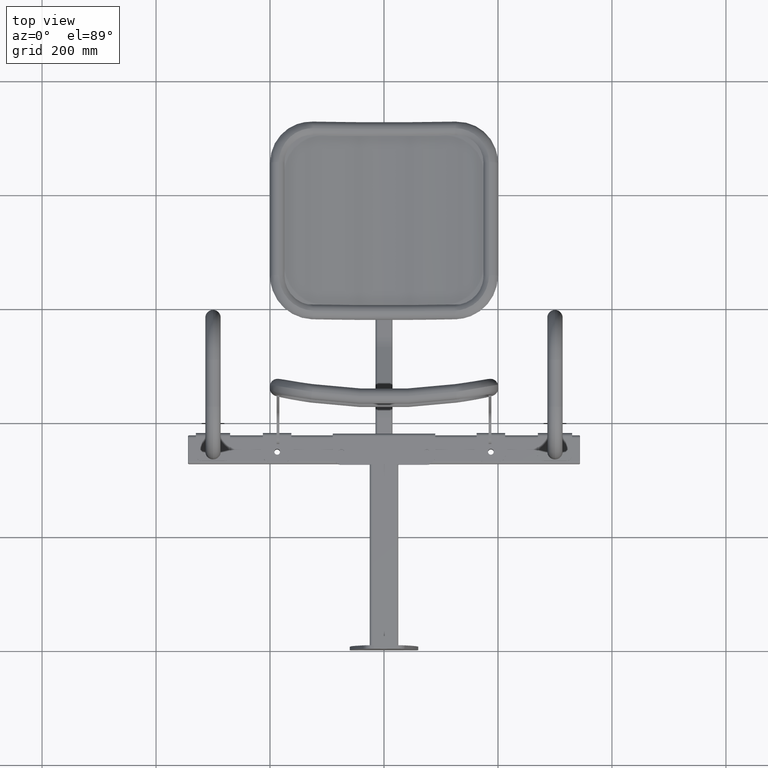
[diagram: clean part render]
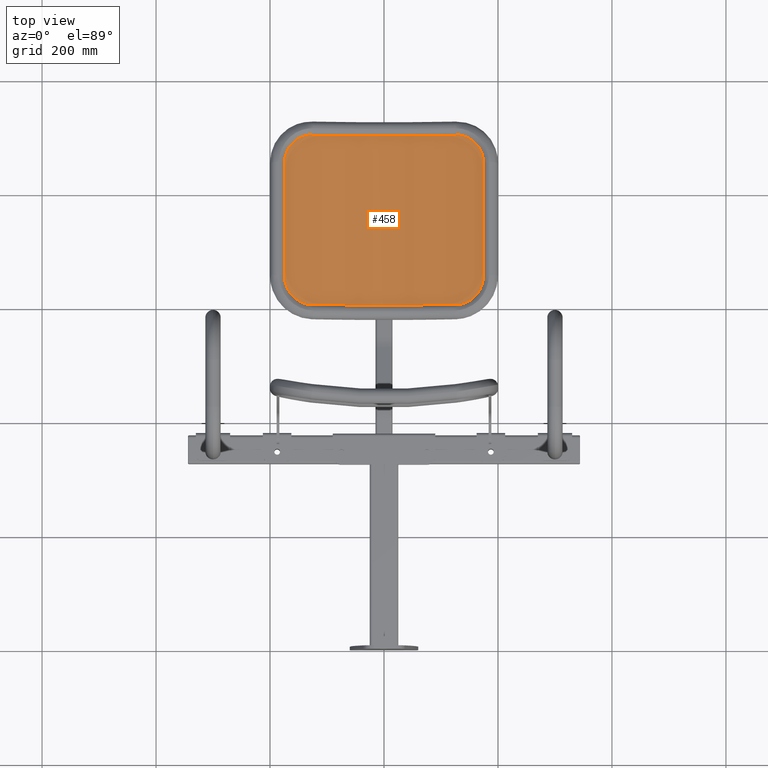
[diagram: same view with one face highlighted and labeled with its STEP entity id]
A machine part, top view. The second image highlights one B-rep face of the part: STEP entity #458.
In plain terms, the highlighted cylindrical surface (partial cylindrical patch) has radius 922 mm, axis along (-0, 0.9925, -0.1219).
Its self-contained STEP definition (entity closure, byte-faithful):
#458 = ADVANCED_FACE ( 'NONE', ( #1578 ), #1581, .F. ) ;
#886 = LINE ( 'NONE', #13178, #890 ) ;
#890 = VECTOR ( 'NONE', #13211, 1000.000000000000000 ) ;
#901 = LINE ( 'NONE', #13348, #903 ) ;
#903 = VECTOR ( 'NONE', #13381, 1000.000000000000000 ) ;
#915 = CIRCLE ( 'NONE', #15581, 921.9999999999998900 ) ;
#916 = CIRCLE ( 'NONE', #15580, 921.9999999999998900 ) ;
#1578 = FACE_OUTER_BOUND ( 'NONE', #16616, .T. ) ;
#1581 = CYLINDRICAL_SURFACE ( 'NONE', #15327, 921.9999999999998900 ) ;
#2684 = B_SPLINE_CURVE_WITH_KNOTS ( 'NONE', 3,
 ( #13461, #13469, #13474, #13475, #13476, #13477, #13478, #13479, #13480, #13481, #13482, #13483, #13484, #13485, #13486, #13487, #13488, #13489, #13490, #13491, #13492, #13493, #13494, #13495, #13496, #13497, #13498, #13499, #13500, #13501, #13502, #13503 ),
 .UNSPECIFIED., .F., .F.,
 ( 4, 2, 2, 2, 2, 2, 2, 2, 2, 2, 2, 2, 2, 2, 2, 4 ),
 ( 0.0000000000000000000, 0.008803417324602391000, 0.01320512598690356400, 0.01540598031805417300, 0.01760683464920477900, 0.02641025197380710000, 0.03081196063610820400, 0.03301281496725878800, 0.03521366929840937700, 0.04401708662301172200, 0.04841879528531291300, 0.05061964961646353600, 0.05282050394761415900, 0.06162392127221670600, 0.06602562993451799300, 0.07042733859681928100 ),
 .UNSPECIFIED. ) ;
#2694 = B_SPLINE_CURVE_WITH_KNOTS ( 'NONE', 3,
 ( #13303, #13304, #13309, #13310, #13311, #13312, #13313, #13314, #13315, #13316, #13317, #13318, #13319, #13320, #13321, #13322, #13323, #13324, #13325, #13326, #13327, #13328, #13329, #13330, #13331, #13332, #13333, #13334, #13335, #13336, #13337, #13338 ),
 .UNSPECIFIED., .F., .F.,
 ( 4, 2, 2, 2, 2, 2, 2, 2, 2, 2, 2, 2, 2, 2, 2, 4 ),
 ( 8.606610732756654000E-016, 0.008802556550099940900, 0.01320383482514949500, 0.01540447396267425300, 0.01760511310019901100, 0.02640766965029801200, 0.03080894792534751000, 0.03300958706287229100, 0.03521022620039706400, 0.04401278275049643600, 0.04841406102554610100, 0.05281533930059576600, 0.06161789585069513100, 0.06601917412574483100, 0.06821981326326970200, 0.07042045240079457300 ),
 .UNSPECIFIED. ) ;
#2701 = B_SPLINE_CURVE_WITH_KNOTS ( 'NONE', 3,
 ( #13091, #13092, #13097, #13098, #13099, #13100, #13101, #13102, #13103, #13104, #13105, #13106, #13107, #13108, #13109, #13110, #13111, #13112, #13113, #13114, #13115, #13116, #13117, #13118, #13119, #13120, #13121, #13122, #13123, #13124, #13125, #13126 ),
 .UNSPECIFIED., .F., .F.,
 ( 4, 2, 2, 2, 2, 2, 2, 2, 2, 2, 2, 2, 2, 2, 2, 4 ),
 ( 3.927108981965563000E-016, 0.008803417324603624400, 0.01320512598690524000, 0.01540598031805603600, 0.01760683464920683200, 0.02641025197380998000, 0.03081196063611156600, 0.03301281496726236200, 0.03521366929841315800, 0.04401708662301644800, 0.04841879528531810300, 0.05061964961646892000, 0.05282050394761975100, 0.06162392127222313100, 0.06602562993452476500, 0.07042733859682641400 ),
 .UNSPECIFIED. ) ;
#2706 = B_SPLINE_CURVE_WITH_KNOTS ( 'NONE', 3,
 ( #13217, #13212, #13220, #13221, #13222, #13223, #13224, #13225, #13226, #13227, #13228, #13229, #13230, #13231, #13232, #13233, #13234, #13235, #13236, #13237, #13238, #13239, #13240, #13241, #13242, #13243, #13244, #13245, #13246, #13247, #13248, #13249 ),
 .UNSPECIFIED., .F., .F.,
 ( 4, 2, 2, 2, 2, 2, 2, 2, 2, 2, 2, 2, 2, 2, 2, 4 ),
 ( 8.428640294997401100E-015, 0.008802556550107020300, 0.01320383482515630000, 0.01540447396268092500, 0.01760511310020554700, 0.02640766965030383000, 0.03080894792535294700, 0.03300958706287754300, 0.03521022620040213000, 0.04401278275050032200, 0.04841406102554943200, 0.05281533930059854900, 0.06161789585069681100, 0.06601917412574592700, 0.06821981326327052100, 0.07042045240079510000 ),
 .UNSPECIFIED. ) ;
#7232 = CARTESIAN_POINT ( 'NONE',  ( -133.5027708095150300, -4.043348160158284800, -150.0000000000000000 ) ) ;
#7245 = CARTESIAN_POINT ( 'NONE',  ( -133.5027708095146900, -4.043348160158411800, 150.0000000000000000 ) ) ;
#10197 = VERTEX_POINT ( 'NONE', #13952 ) ;
#10210 = VERTEX_POINT ( 'NONE', #13965 ) ;
#10269 = VERTEX_POINT ( 'NONE', #14024 ) ;
#10283 = VERTEX_POINT ( 'NONE', #14038 ) ;
#10286 = VERTEX_POINT ( 'NONE', #14041 ) ;
#10290 = VERTEX_POINT ( 'NONE', #14045 ) ;
#11917 = VERTEX_POINT ( 'NONE', #7232 ) ;
#11930 = VERTEX_POINT ( 'NONE', #7245 ) ;
#13091 = CARTESIAN_POINT ( 'NONE',  ( 174.6780423094277000, 2.938127989229069900, -100.0000000000000000 ) ) ;
#13092 = CARTESIAN_POINT ( 'NONE',  ( 174.6780423094293400, 2.938127989232677700, -102.9767111701996900 ) ) ;
#13097 = CARTESIAN_POINT ( 'NONE',  ( 174.4252569109687800, 2.889249156995799400, -105.9095809351519500 ) ) ;
#13098 = CARTESIAN_POINT ( 'NONE',  ( 173.6823065029261100, 2.746533479585206100, -110.2458254922048400 ) ) ;
#13099 = CARTESIAN_POINT ( 'NONE',  ( 173.3736626402040300, 2.687343729852856200, -111.6806676315718500 ) ) ;
#13100 = CARTESIAN_POINT ( 'NONE',  ( 172.8179272435431000, 2.581180420399842700, -113.8168594006251100 ) ) ;
#13101 = CARTESIAN_POINT ( 'NONE',  ( 172.6171985542212000, 2.542893235740705000, -114.5262409831928100 ) ) ;
#13102 = CARTESIAN_POINT ( 'NONE',  ( 172.1842845498676400, 2.460491188602074600, -115.9395566754920600 ) ) ;
#13103 = CARTESIAN_POINT ( 'NONE',  ( 171.9515861540681700, 2.416279086558696900, -116.6449153591403000 ) ) ;
#13104 = CARTESIAN_POINT ( 'NONE',  ( 170.7138823299352700, 2.181677444009757900, -120.1406797326989000 ) ) ;
#13105 = CARTESIAN_POINT ( 'NONE',  ( 169.4991983137305700, 1.953047274785819400, -122.8105190491347500 ) ) ;
#13106 = CARTESIAN_POINT ( 'NONE',  ( 167.3512060475766000, 1.554827582412844600, -126.6316484380882800 ) ) ;
#13107 = CARTESIAN_POINT ( 'NONE',  ( 166.5805605887740900, 1.412827841483002900, -127.8745735445691900 ) ) ;
#13108 = CARTESIAN_POINT ( 'NONE',  ( 165.3411140186353800, 1.186313528368801600, -129.6919993142205100 ) ) ;
#13109 = CARTESIAN_POINT ( 'NONE',  ( 164.9140322696746600, 1.108553735959722200, -130.2899698321673700 ) ) ;
#13110 = CARTESIAN_POINT ( 'NONE',  ( 164.0315003009444900, 0.9485552417487855800, -131.4699633020638000 ) ) ;
#13111 = CARTESIAN_POINT ( 'NONE',  ( 163.5748653853536300, 0.8661043752936908900, -132.0533764078747100 ) ) ;
#13112 = CARTESIAN_POINT ( 'NONE',  ( 161.2387529999138600, 0.4462085634064498800, -134.9061564388811700 ) ) ;
#13113 = CARTESIAN_POINT ( 'NONE',  ( 159.1978465308786500, 0.08529606656501249900, -136.9917475094728700 ) ) ;
#13114 = CARTESIAN_POINT ( 'NONE',  ( 155.8851279581342100, -0.4871208554714147000, -139.8338622777737000 ) ) ;
#13115 = CARTESIAN_POINT ( 'NONE',  ( 154.7387530509506600, -0.6831380520290655200, -140.7332446702119200 ) ) ;
#13116 = CARTESIAN_POINT ( 'NONE',  ( 152.9546340337428200, -0.9844723836857178800, -142.0089234182692900 ) ) ;
#13117 = CARTESIAN_POINT ( 'NONE',  ( 152.3491529466003600, -1.086137138710676600, -142.4218997634149800 ) ) ;
#13118 = CARTESIAN_POINT ( 'NONE',  ( 151.1162202790401100, -1.291844430166143600, -143.2228952222699800 ) ) ;
#13119 = CARTESIAN_POINT ( 'NONE',  ( 150.4883261064795800, -1.395955851073583900, -143.6110605275198400 ) ) ;
#13120 = CARTESIAN_POINT ( 'NONE',  ( 147.3253740385165700, -1.916968884661652400, -145.4697822865375400 ) ) ;
#13121 = CARTESIAN_POINT ( 'NONE',  ( 144.6960490761461800, -2.339245843048198800, -146.7123967559648200 ) ) ;
#13122 = CARTESIAN_POINT ( 'NONE',  ( 140.6068619629395800, -2.976500450835516600, -148.2193977601141100 ) ) ;
#13123 = CARTESIAN_POINT ( 'NONE',  ( 139.2194630377412600, -3.189579564213771900, -148.6619021252992600 ) ) ;
#13124 = CARTESIAN_POINT ( 'NONE',  ( 136.3948739619451400, -3.616554344970484000, -149.4247097407211700 ) ) ;
#13125 = CARTESIAN_POINT ( 'NONE',  ( 134.9540972695986100, -3.830962291024167900, -149.7453999577484500 ) ) ;
#13126 = CARTESIAN_POINT ( 'NONE',  ( 133.5027708095076700, -4.043348160161209600, -150.0000000000000000 ) ) ;
#13178 = CARTESIAN_POINT ( 'NONE',  ( 174.6780423094276400, 2.938127989229100100, 0.0000000000000000000 ) ) ;
#13211 = DIRECTION ( 'NONE',  ( -0.0000000000000000000, -0.0000000000000000000, -1.000000000000000000 ) ) ;
#13212 = CARTESIAN_POINT ( 'NONE',  ( -136.4044524121475800, -3.618718563662579600, -149.4909703096117000 ) ) ;
#13217 = CARTESIAN_POINT ( 'NONE',  ( -133.5027708095150300, -4.043348160158284800, -150.0000000000000000 ) ) ;
#13220 = CARTESIAN_POINT ( 'NONE',  ( -139.2157402112301000, -3.193201298298841800, -148.7300908071784700 ) ) ;
#13221 = CARTESIAN_POINT ( 'NONE',  ( -143.3031395745495900, -2.556359719185635500, -147.2267049283003600 ) ) ;
#13222 = CARTESIAN_POINT ( 'NONE',  ( -144.6438899564408000, -2.344332376845247100, -146.6648703919832100 ) ) ;
#13223 = CARTESIAN_POINT ( 'NONE',  ( -146.6220860598248200, -2.027162559964417200, -145.7298554267849800 ) ) ;
#13224 = CARTESIAN_POINT ( 'NONE',  ( -147.2759889221212900, -1.921585602901901400, -145.4027849053079300 ) ) ;
#13225 = CARTESIAN_POINT ( 'NONE',  ( -148.5726483527038200, -1.710821201565750500, -144.7173727561183200 ) ) ;
#13226 = CARTESIAN_POINT ( 'NONE',  ( -149.2169678934316400, -1.605374842082262400, -144.3580730241737600 ) ) ;
#13227 = CARTESIAN_POINT ( 'NONE',  ( -152.3844638327494200, -1.083632167137132500, -142.4972107034067800 ) ) ;
#13228 = CARTESIAN_POINT ( 'NONE',  ( -154.7532591195762600, -0.6826354278457768000, -140.8022876210274600 ) ) ;
#13229 = CARTESIAN_POINT ( 'NONE',  ( -158.0685886014815900, -0.1098646472610107000, -137.9618855153419800 ) ) ;
#13230 = CARTESIAN_POINT ( 'NONE',  ( -159.1338203578423800, 0.07624399679278519300, -136.9651220025052700 ) ) ;
#13231 = CARTESIAN_POINT ( 'NONE',  ( -160.6710205796737200, 0.3473898814974699700, -135.3938462974307700 ) ) ;
#13232 = CARTESIAN_POINT ( 'NONE',  ( -161.1732984616822900, 0.4364335548314541800, -134.8573813391294900 ) ) ;
#13233 = CARTESIAN_POINT ( 'NONE',  ( -162.1572907833169400, 0.6116837531127629100, -133.7586132477186700 ) ) ;
#13234 = CARTESIAN_POINT ( 'NONE',  ( -162.6382829059245400, 0.6977635892723492700, -133.1969790404442600 ) ) ;
#13235 = CARTESIAN_POINT ( 'NONE',  ( -164.9687295435143100, 1.116632361648125300, -130.3517139942909200 ) ) ;
#13236 = CARTESIAN_POINT ( 'NONE',  ( -166.6149145823608800, 1.418353854519800900, -127.9372995264752000 ) ) ;
#13237 = CARTESIAN_POINT ( 'NONE',  ( -168.7673811361679800, 1.817360527010247500, -124.1144138570340200 ) ) ;
#13238 = CARTESIAN_POINT ( 'NONE',  ( -169.4317598822122500, 1.941394612183192000, -122.8063802993798100 ) ) ;
#13239 = CARTESIAN_POINT ( 'NONE',  ( -170.6523357711537900, 2.170431089114700700, -120.1215041083181900 ) ) ;
#13240 = CARTESIAN_POINT ( 'NONE',  ( -171.2095691463161700, 2.275633990467209600, -118.7401357903834500 ) ) ;
#13241 = CARTESIAN_POINT ( 'NONE',  ( -172.6868317126451300, 2.555639529861443800, -114.5693454951728300 ) ) ;
#13242 = CARTESIAN_POINT ( 'NONE',  ( -173.4255939864389100, 2.697224416701996300, -111.7314858990513500 ) ) ;
#13243 = CARTESIAN_POINT ( 'NONE',  ( -174.1725968260297700, 2.840713097092864000, -107.3904394198565100 ) ) ;
#13244 = CARTESIAN_POINT ( 'NONE',  ( -174.3610627241996300, 2.877015158256031500, -105.9293014465063200 ) ) ;
#13245 = CARTESIAN_POINT ( 'NONE',  ( -174.5507831765804400, 2.913580320993418100, -103.7158953305182900 ) ) ;
#13246 = CARTESIAN_POINT ( 'NONE',  ( -174.5985353192888900, 2.922790154322341600, -102.9733979338756000 ) ) ;
#13247 = CARTESIAN_POINT ( 'NONE',  ( -174.6621354910554700, 2.935058333662315300, -101.4874028404083200 ) ) ;
#13248 = CARTESIAN_POINT ( 'NONE',  ( -174.6780423094276700, 2.938127989229069900, -100.7439361827915900 ) ) ;
#13249 = CARTESIAN_POINT ( 'NONE',  ( -174.6780423094277000, 2.938127989229081900, -100.0000000000000000 ) ) ;
#13303 = CARTESIAN_POINT ( 'NONE',  ( 133.5027708095076900, -4.043348160161192700, 150.0000000000000000 ) ) ;
#13304 = CARTESIAN_POINT ( 'NONE',  ( 136.4044524121483200, -3.618718563662441000, 149.4909703096116400 ) ) ;
#13309 = CARTESIAN_POINT ( 'NONE',  ( 139.2157402112238200, -3.193201298299714900, 148.7300908071803700 ) ) ;
#13310 = CARTESIAN_POINT ( 'NONE',  ( 143.3031395745439300, -2.556359719186442900, 147.2267049283025500 ) ) ;
#13311 = CARTESIAN_POINT ( 'NONE',  ( 144.6438899564353200, -2.344332376846201000, 146.6648703919855400 ) ) ;
#13312 = CARTESIAN_POINT ( 'NONE',  ( 146.6220860598195900, -2.027162559965339600, 145.7298554267874800 ) ) ;
#13313 = CARTESIAN_POINT ( 'NONE',  ( 147.2759889221161700, -1.921585602902800000, 145.4027849053104800 ) ) ;
#13314 = CARTESIAN_POINT ( 'NONE',  ( 148.5726483526988500, -1.710821201566628200, 144.7173727561209900 ) ) ;
#13315 = CARTESIAN_POINT ( 'NONE',  ( 149.2169678934267000, -1.605374842083110200, 144.3580730241763500 ) ) ;
#13316 = CARTESIAN_POINT ( 'NONE',  ( 152.3844638327451300, -1.083632167137888800, 142.4972107034095600 ) ) ;
#13317 = CARTESIAN_POINT ( 'NONE',  ( 154.7532591195726200, -0.6826354278463492300, 140.8022876210304200 ) ) ;
#13318 = CARTESIAN_POINT ( 'NONE',  ( 158.0685886014783800, -0.1098646472614986900, 137.9618855153448200 ) ) ;
#13319 = CARTESIAN_POINT ( 'NONE',  ( 159.1338203578393400, 0.07624399679224898300, 136.9651220025082000 ) ) ;
#13320 = CARTESIAN_POINT ( 'NONE',  ( 160.6710205796708200, 0.3473898814969710900, 135.3938462974336400 ) ) ;
#13321 = CARTESIAN_POINT ( 'NONE',  ( 161.1732984616796200, 0.4364335548311996700, 134.8573813391325900 ) ) ;
#13322 = CARTESIAN_POINT ( 'NONE',  ( 162.1572907833144100, 0.6116837531125318700, 133.7586132477217400 ) ) ;
#13323 = CARTESIAN_POINT ( 'NONE',  ( 162.6382829059219500, 0.6977635892719202800, 133.1969790404470200 ) ) ;
#13324 = CARTESIAN_POINT ( 'NONE',  ( 164.9687295435123200, 1.116632361647790000, 130.3517139942935600 ) ) ;
#13325 = CARTESIAN_POINT ( 'NONE',  ( 166.6149145823592300, 1.418353854519284200, 127.9372995264775900 ) ) ;
#13326 = CARTESIAN_POINT ( 'NONE',  ( 168.7673811361666200, 1.817360527009802600, 124.1144138570360700 ) ) ;
#13327 = CARTESIAN_POINT ( 'NONE',  ( 169.4317598822111400, 1.941394612182911500, 122.8063802993819100 ) ) ;
#13328 = CARTESIAN_POINT ( 'NONE',  ( 170.6523357711529300, 2.170431089114456900, 120.1215041083201400 ) ) ;
#13329 = CARTESIAN_POINT ( 'NONE',  ( 171.2095691463154600, 2.275633990467107000, 118.7401357903853100 ) ) ;
#13330 = CARTESIAN_POINT ( 'NONE',  ( 172.6868317126446200, 2.555639529861405600, 114.5693454951741200 ) ) ;
#13331 = CARTESIAN_POINT ( 'NONE',  ( 173.4255939864386600, 2.697224416701903900, 111.7314858990523000 ) ) ;
#13332 = CARTESIAN_POINT ( 'NONE',  ( 174.1725968260296900, 2.840713097092797800, 107.3904394198571000 ) ) ;
#13333 = CARTESIAN_POINT ( 'NONE',  ( 174.3610627241994000, 2.877015158256080800, 105.9293014465067600 ) ) ;
#13334 = CARTESIAN_POINT ( 'NONE',  ( 174.5507831765803000, 2.913580320993474500, 103.7158953305186200 ) ) ;
#13335 = CARTESIAN_POINT ( 'NONE',  ( 174.5985353192888000, 2.922790154322271000, 102.9733979338758200 ) ) ;
#13336 = CARTESIAN_POINT ( 'NONE',  ( 174.6621354910553800, 2.935058333662245600, 101.4874028404083900 ) ) ;
#13337 = CARTESIAN_POINT ( 'NONE',  ( 174.6780423094276700, 2.938127989229131700, 100.7439361827916900 ) ) ;
#13338 = CARTESIAN_POINT ( 'NONE',  ( 174.6780423094294300, 2.938127989232640800, 100.0000000000000000 ) ) ;
#13348 = CARTESIAN_POINT ( 'NONE',  ( -174.6780423094276400, 2.938127989229100100, 0.0000000000000000000 ) ) ;
#13381 = DIRECTION ( 'NONE',  ( 0.0000000000000000000, 0.0000000000000000000, 1.000000000000000000 ) ) ;
#13461 = CARTESIAN_POINT ( 'NONE',  ( -174.6780423094293200, 2.938127989232692400, 100.0000000000000000 ) ) ;
#13469 = CARTESIAN_POINT ( 'NONE',  ( -174.6780423094293400, 2.938127989232672800, 102.9767111701994100 ) ) ;
#13474 = CARTESIAN_POINT ( 'NONE',  ( -174.4252569109689300, 2.889249156995811900, 105.9095809351510100 ) ) ;
#13475 = CARTESIAN_POINT ( 'NONE',  ( -173.6823065029263400, 2.746533479585251800, 110.2458254922035100 ) ) ;
#13476 = CARTESIAN_POINT ( 'NONE',  ( -173.3736626402041700, 2.687343729852773100, 111.6806676315702900 ) ) ;
#13477 = CARTESIAN_POINT ( 'NONE',  ( -172.8179272435433500, 2.581180420399785500, 113.8168594006234100 ) ) ;
#13478 = CARTESIAN_POINT ( 'NONE',  ( -172.6171985542216600, 2.542893235740781400, 114.5262409831910900 ) ) ;
#13479 = CARTESIAN_POINT ( 'NONE',  ( -172.1842845498681500, 2.460491188602168800, 115.9395566754901700 ) ) ;
#13480 = CARTESIAN_POINT ( 'NONE',  ( -171.9515861540688800, 2.416279086558927900, 116.6449153591384100 ) ) ;
#13481 = CARTESIAN_POINT ( 'NONE',  ( -170.7138823299361500, 2.181677444010035500, 120.1406797326967500 ) ) ;
#13482 = CARTESIAN_POINT ( 'NONE',  ( -169.4991983137317100, 1.953047274786017000, 122.8105190491324400 ) ) ;
#13483 = CARTESIAN_POINT ( 'NONE',  ( -167.3512060475781000, 1.554827582413115000, 126.6316484380856600 ) ) ;
#13484 = CARTESIAN_POINT ( 'NONE',  ( -166.5805605887757700, 1.412827841483428100, 127.8745735445665200 ) ) ;
#13485 = CARTESIAN_POINT ( 'NONE',  ( -165.3411140186372800, 1.186313528369269400, 129.6919993142177200 ) ) ;
#13486 = CARTESIAN_POINT ( 'NONE',  ( -164.9140322696765100, 1.108553735960062300, 130.2899698321644500 ) ) ;
#13487 = CARTESIAN_POINT ( 'NONE',  ( -164.0315003009465600, 0.9485552417491554000, 131.4699633020608200 ) ) ;
#13488 = CARTESIAN_POINT ( 'NONE',  ( -163.5748653853558800, 0.8661043752940986700, 132.0533764078717500 ) ) ;
#13489 = CARTESIAN_POINT ( 'NONE',  ( -161.2387529999165600, 0.4462085634069267700, 134.9061564388781600 ) ) ;
#13490 = CARTESIAN_POINT ( 'NONE',  ( -159.1978465308816300, 0.08529606656551852500, 136.9917475094698600 ) ) ;
#13491 = CARTESIAN_POINT ( 'NONE',  ( -155.8851279581378200, -0.4871208554708224000, 139.8338622777707200 ) ) ;
#13492 = CARTESIAN_POINT ( 'NONE',  ( -154.7387530509545900, -0.6831380520284142700, 140.7332446702091000 ) ) ;
#13493 = CARTESIAN_POINT ( 'NONE',  ( -152.9546340337470000, -0.9844723836850226600, 142.0089234182664200 ) ) ;
#13494 = CARTESIAN_POINT ( 'NONE',  ( -152.3491529466046500, -1.086137138709850400, 142.4218997634122600 ) ) ;
#13495 = CARTESIAN_POINT ( 'NONE',  ( -151.1162202790446000, -1.291844430165286900, 143.2228952222672500 ) ) ;
#13496 = CARTESIAN_POINT ( 'NONE',  ( -150.4883261064841200, -1.395955851072827400, 143.6110605275170800 ) ) ;
#13497 = CARTESIAN_POINT ( 'NONE',  ( -147.3253740385216300, -1.916968884660838600, 145.4697822865349500 ) ) ;
#13498 = CARTESIAN_POINT ( 'NONE',  ( -144.6960490761516700, -2.339245843047391000, 146.7123967559623200 ) ) ;
#13499 = CARTESIAN_POINT ( 'NONE',  ( -140.6068619629455700, -2.976500450834642200, 148.2193977601120300 ) ) ;
#13500 = CARTESIAN_POINT ( 'NONE',  ( -139.2194630377474600, -3.189579564212846400, 148.6619021252973600 ) ) ;
#13501 = CARTESIAN_POINT ( 'NONE',  ( -136.3948739619516700, -3.616554344969511400, 149.4247097407194600 ) ) ;
#13502 = CARTESIAN_POINT ( 'NONE',  ( -134.9540972695988900, -3.830962291024016900, 149.7453999577483600 ) ) ;
#13503 = CARTESIAN_POINT ( 'NONE',  ( -133.5027708095146900, -4.043348160158411800, 150.0000000000000000 ) ) ;
#13608 = CARTESIAN_POINT ( 'NONE',  ( 0.0000000000000000000, 908.2400563727633200, 150.0000000000000000 ) ) ;
#13609 = DIRECTION ( 'NONE',  ( 0.0000000000000000000, 0.0000000000000000000, 1.000000000000000000 ) ) ;
#13610 = DIRECTION ( 'NONE',  ( 1.000000000000000000, 0.0000000000000000000, 0.0000000000000000000 ) ) ;
#13611 = CARTESIAN_POINT ( 'NONE',  ( 0.0000000000000000000, 908.2400563727633200, -150.0000000000000000 ) ) ;
#13612 = DIRECTION ( 'NONE',  ( 0.0000000000000000000, 0.0000000000000000000, 1.000000000000000000 ) ) ;
#13613 = DIRECTION ( 'NONE',  ( 1.000000000000000000, 0.0000000000000000000, 0.0000000000000000000 ) ) ;
#13952 = CARTESIAN_POINT ( 'NONE',  ( 174.6780423094294300, 2.938127989232640800, 100.0000000000000000 ) ) ;
#13965 = CARTESIAN_POINT ( 'NONE',  ( -174.6780423094277000, 2.938127989229081900, -100.0000000000000000 ) ) ;
#14024 = CARTESIAN_POINT ( 'NONE',  ( 133.5027708095076900, -4.043348160161192700, 150.0000000000000000 ) ) ;
#14038 = CARTESIAN_POINT ( 'NONE',  ( -174.6780423094293200, 2.938127989232692400, 100.0000000000000000 ) ) ;
#14041 = CARTESIAN_POINT ( 'NONE',  ( 133.5027708095076700, -4.043348160161209600, -150.0000000000000000 ) ) ;
#14045 = CARTESIAN_POINT ( 'NONE',  ( 174.6780423094277000, 2.938127989229069900, -100.0000000000000000 ) ) ;
#14447 = DIRECTION ( 'NONE',  ( -0.0000000000000000000, -0.0000000000000000000, -1.000000000000000000 ) ) ;
#14449 = DIRECTION ( 'NONE',  ( -1.000000000000000000, 0.0000000000000000000, 0.0000000000000000000 ) ) ;
#14453 = CARTESIAN_POINT ( 'NONE',  ( 0.0000000000000000000, 908.2400563727633200, 150.0000000000000000 ) ) ;
#15327 = AXIS2_PLACEMENT_3D ( 'NONE', #14453, #14447, #14449 ) ;
#15580 = AXIS2_PLACEMENT_3D ( 'NONE', #13608, #13609, #13610 ) ;
#15581 = AXIS2_PLACEMENT_3D ( 'NONE', #13611, #13612, #13613 ) ;
#15867 = EDGE_CURVE ( 'NONE', #10290, #10286, #2701, .T. ) ;
#15874 = EDGE_CURVE ( 'NONE', #10197, #10290, #886, .T. ) ;
#15877 = EDGE_CURVE ( 'NONE', #11917, #10210, #2706, .T. ) ;
#15886 = EDGE_CURVE ( 'NONE', #10269, #10197, #2694, .T. ) ;
#15890 = EDGE_CURVE ( 'NONE', #10210, #10283, #901, .T. ) ;
#15900 = EDGE_CURVE ( 'NONE', #10283, #11930, #2684, .T. ) ;
#15909 = EDGE_CURVE ( 'NONE', #11930, #10269, #916, .T. ) ;
#15910 = EDGE_CURVE ( 'NONE', #11917, #10286, #915, .T. ) ;
#16549 = ORIENTED_EDGE ( 'NONE', *, *, #15874, .T. ) ;
#16550 = ORIENTED_EDGE ( 'NONE', *, *, #15867, .T. ) ;
#16551 = ORIENTED_EDGE ( 'NONE', *, *, #15910, .F. ) ;
#16552 = ORIENTED_EDGE ( 'NONE', *, *, #15877, .T. ) ;
#16553 = ORIENTED_EDGE ( 'NONE', *, *, #15890, .T. ) ;
#16554 = ORIENTED_EDGE ( 'NONE', *, *, #15900, .T. ) ;
#16555 = ORIENTED_EDGE ( 'NONE', *, *, #15909, .T. ) ;
#16556 = ORIENTED_EDGE ( 'NONE', *, *, #15886, .T. ) ;
#16616 = EDGE_LOOP ( 'NONE', ( #16549, #16550, #16551, #16552, #16553, #16554, #16555, #16556 ) ) ;